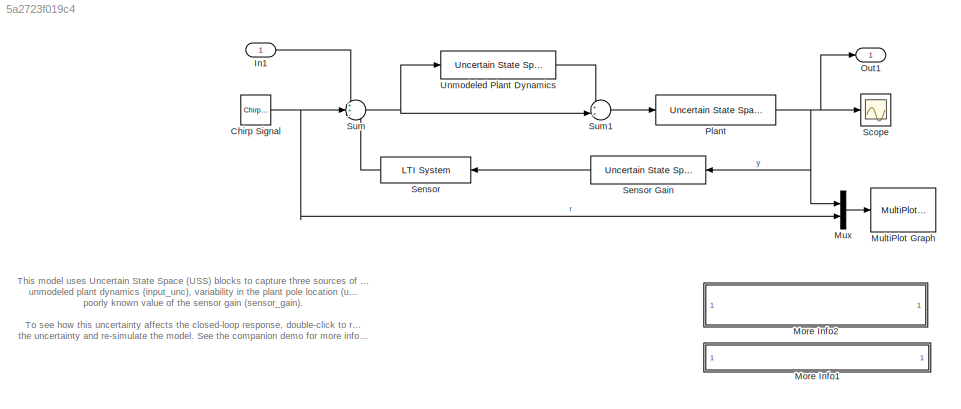
MODEL slx_5a2723f019c4
KIND model
CONFIG AbsTol = auto
CONFIG EnableMultiTasking = on
CONFIG FixedStep = auto
CONFIG MaxStep = auto
CONFIG MinStep = auto
CONFIG PreLoadFcn = uval = [];
CONFIG RelTol = 1e-3
CONFIG SampleTimeConstraint = Unconstrained
CONFIG SolverName = ode23t
CONFIG StartTime = 0
CONFIG StopTime = 10
WORKSPACE source: mxarray member
WORKSPACE input_unc: ultidyn (value not decoded)
WORKSPACE sensor_gain: ureal (value not decoded)
WORKSPACE unc_pole: ureal (value not decoded)
WORKSPACE wt: object (value not decoded)
BLOCK [Reference] Chirp Signal  REF=simulink/Sources/Chirp Signal
  SourceBlock = simulink/Sources/Chirp Signal
  SourceType = chirp
BLOCK [Inport] In1
BLOCK [SubSystem] More Info1
  OpenFcn = web(fullfile(matlabroot,'toolbox','robust','rctdemos','html','usim_demo.html'))
BLOCK [SubSystem] More Info2
  OpenFcn = uval = usample(ufind(gcs));
BLOCK [Reference] MultiPlot Graph  REF=RCTblocks/MultiPlot Graph
  SourceBlock = RCTblocks/MultiPlot Graph
  SourceType = MultiPlot Graph
  Tag = MultiPlot
BLOCK [Mux] Mux
  DisplayOption = bar
  Inputs = 2
BLOCK [Outport] Out1
  VectorParamsAs1DForOutWhenUnconnected = off
BLOCK [Reference] Plant  REF=RCTblocks/Uncertain State Space
  SourceBlock = RCTblocks/Uncertain State Space
  SourceType = Uncertain State Space Block
  Tag = USS
BLOCK [Scope] Scope
  Floating = off
  NumInputPorts = 1
  ScopeSpecificationString = C++SS(StrPVP('Location','[681, 494, 1005, 733]'),StrPVP('Open','off'),MxPVP('AxesTitles',54,'struct(''axes1'',''%<SignalLabel>'')'),MxPVP('ScopeGraphics',57,'struct(''FigureColor'',''[0.5 0.5 0.5]'',''AxesColor'',''[0 0 0]'',''AxesTickColor'',''[1 1 1]'',''LineColors'',''[1 1 0;1 0 1;0 1 1;1 0 0;0 1 0;0 0 1]'',''LineStyles'',''-|-|-|-|-|-'',''LineWidths'',''[0.5 0.5 0.5 0.5 0.5 0.5]'',''MarkerStyl...<+242ch>
BLOCK [Reference] Sensor  REF=cstblocks/LTI System
  SourceBlock = cstblocks/LTI System
  SourceType = LTI Block
BLOCK [Reference] Sensor Gain  REF=RCTblocks/Uncertain State Space
  SourceBlock = RCTblocks/Uncertain State Space
  SourceType = Uncertain State Space Block
  Tag = USS
BLOCK [Sum] Sum
  Inputs = ++-
BLOCK [Sum] Sum1
  Inputs = ++|
BLOCK [Reference] Unmodeled Plant Dynamics  REF=RCTblocks/Uncertain State Space
  SourceBlock = RCTblocks/Uncertain State Space
  SourceType = Uncertain State Space Block
  Tag = USS
ANNOTATION (root): This model uses Uncertain State Space (USS) blocks to capture three sources of uncertainty: unmodeled plant dynamics (input_unc), variability in the plant pole location (unc_pole), and poorly known value of the sensor gain (sensor_gain). To see how this uncertainty affects the closed-loop response, double-click to randomly sample the uncertainty and re-simulate the model. See the companion demo fo...<+54ch>
NET Chirp Signal:1 -> Mux:2, Sum:2
LINE In1:1 -> Sum:1
LINE Mux:1 -> MultiPlot Graph:1
NET Plant:1 -> Mux:1, Out1:1, Scope:1, Sensor Gain:1
LINE Sensor Gain:1 -> Sensor:1
LINE Sensor:1 -> Sum:3
LINE Sum1:1 -> Plant:1
NET Sum:1 -> Sum1:2, Unmodeled Plant Dynamics:1
LINE Unmodeled Plant Dynamics:1 -> Sum1:1
note: NET lines group one-source signal fan-out (src -> all destinations, sorted); 1:1 wires keep LINE
